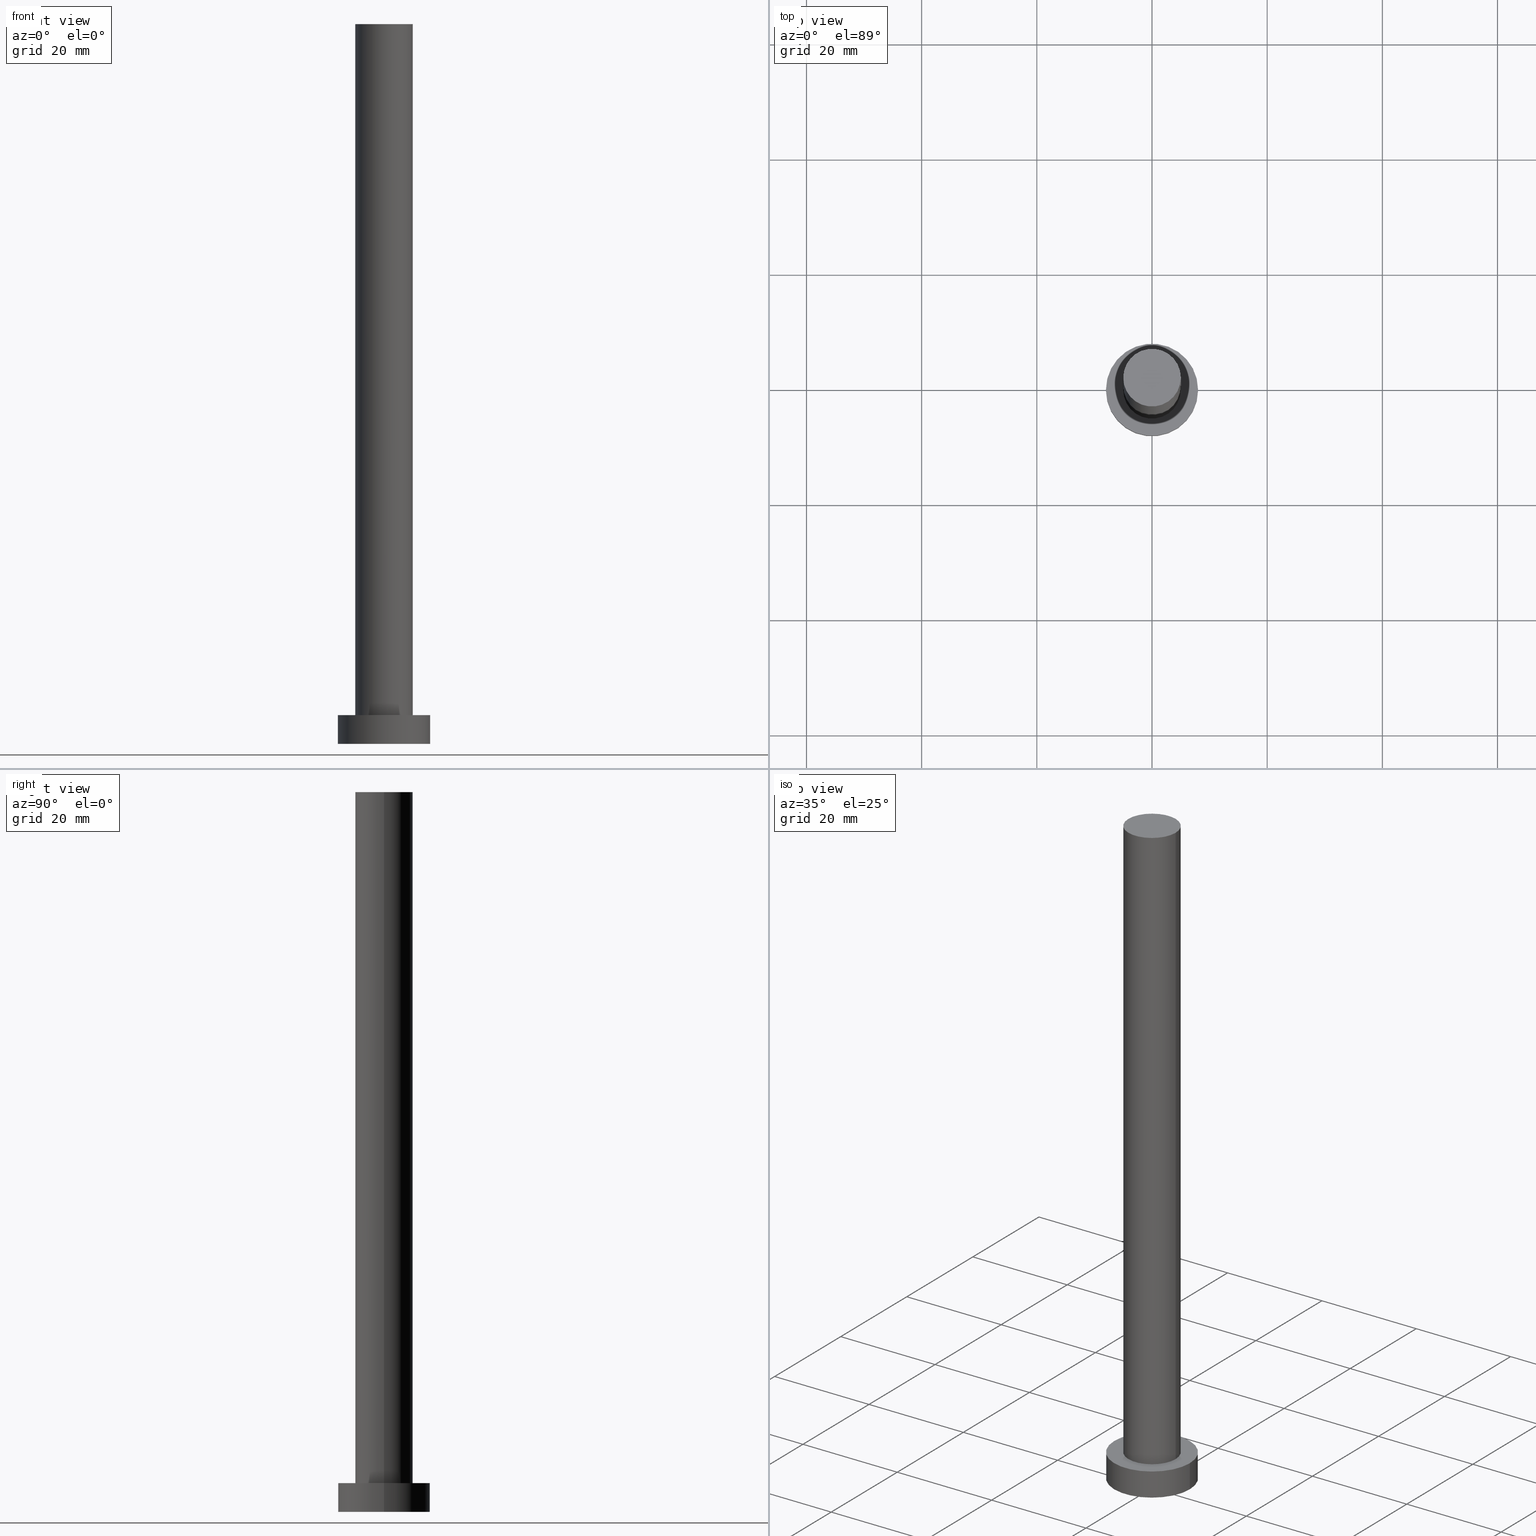
[diagram: canonical four-view strip — front | top / right | iso, engineering-drawing reading convention]
A machine part, canonical four-view strip (front | top / right | iso — engineering-drawing reading convention). The complete STEP part file that produces these views, byte-faithful:
ISO-10303-21;
HEADER;
FILE_DESCRIPTION (( 'STEP AP203' ),
    '1' );
FILE_NAME ('df40.STEP',
    '2023-02-13T10:49:41',
    ( '' ),
    ( '' ),
    'SwSTEP 2.0',
    'SolidWorks 2019',
    '' );
FILE_SCHEMA (( 'CONFIG_CONTROL_DESIGN' ));
ENDSEC;

DATA;
#1 = DIRECTION ( 'NONE',  ( 1.000000000000000000, 0.000000000000000000, 0.000000000000000000 ) ) ;
#2 = FACE_OUTER_BOUND ( 'NONE', #232, .T. ) ;
#3 = CARTESIAN_POINT ( 'NONE',  ( 0.000000000000000000, 0.000000000000000000, 0.000000000000000000 ) ) ;
#4 = PERSON ( 'NEUR�EN�', 'NEUR�EN�', 'NEUR�EN�', ('NEUR�EN�'), ('NEUR�EN�'), ('NEUR�EN�') ) ;
#5 = LOCAL_TIME ( 11, 49, 41.00000000000000000, #244 ) ;
#6 = CIRCLE ( 'NONE', #99, 8.000000000000000000 ) ;
#7 = CALENDAR_DATE ( 2023, 13, 2 ) ;
#8 = ORIENTED_EDGE ( 'NONE', *, *, #211, .T. ) ;
#9 = ORIENTED_EDGE ( 'NONE', *, *, #169, .F. ) ;
#10 = PERSON_AND_ORGANIZATION_ROLE ( 'design_owner' ) ;
#11 = CIRCLE ( 'NONE', #192, 8.000000000000000000 ) ;
#12 = PERSON_AND_ORGANIZATION ( #4, #83 ) ;
#13 = ADVANCED_FACE ( 'NONE', ( #14 ), #231, .T. ) ;
#14 = FACE_OUTER_BOUND ( 'NONE', #239, .T. ) ;
#15 = EDGE_LOOP ( 'NONE', ( #177, #162, #56, #96 ) ) ;
#16 = CARTESIAN_POINT ( 'NONE',  ( -5.000000000000000888, 0.000000000000000000, 125.0000000000000000 ) ) ;
#17 = CARTESIAN_POINT ( 'NONE',  ( 0.000000000000000000, 0.000000000000000000, 125.0000000000000000 ) ) ;
#18 =( LENGTH_UNIT ( ) NAMED_UNIT ( * ) SI_UNIT ( .MILLI., .METRE. ) );
#19 = CYLINDRICAL_SURFACE ( 'NONE', #226, 5.000000000000000888 ) ;
#20 = APPROVAL_ROLE ( '' ) ;
#21 = APPLICATION_CONTEXT ( 'configuration controlled 3d designs of mechanical parts and assemblies' ) ;
#22 = ORIENTED_EDGE ( 'NONE', *, *, #126, .T. ) ;
#23 = APPROVAL_ROLE ( '' ) ;
#24 = DIRECTION ( 'NONE',  ( 0.000000000000000000, 0.000000000000000000, 1.000000000000000000 ) ) ;
#25 = DATE_AND_TIME ( #44, #94 ) ;
#26 = CARTESIAN_POINT ( 'NONE',  ( 0.000000000000000000, 0.000000000000000000, 0.000000000000000000 ) ) ;
#27 = CARTESIAN_POINT ( 'NONE',  ( 0.000000000000000000, 0.000000000000000000, 5.000000000000000000 ) ) ;
#28 = EDGE_LOOP ( 'NONE', ( #141, #120, #102, #151 ) ) ;
#29 = DIRECTION ( 'NONE',  ( 0.000000000000000000, 0.000000000000000000, 1.000000000000000000 ) ) ;
#30 = EDGE_CURVE ( 'NONE', #86, #132, #104, .T. ) ;
#31 = CIRCLE ( 'NONE', #229, 5.000000000000000888 ) ;
#32 = VECTOR ( 'NONE', #101, 1000.000000000000000 ) ;
#33 = CARTESIAN_POINT ( 'NONE',  ( -8.000000000000000000, 0.000000000000000000, 0.000000000000000000 ) ) ;
#34 = CC_DESIGN_DATE_AND_TIME_ASSIGNMENT ( #237, #54, ( #38 ) ) ;
#35 = DIRECTION ( 'NONE',  ( 1.000000000000000000, 0.000000000000000000, -0.000000000000000000 ) ) ;
#36 = CARTESIAN_POINT ( 'NONE',  ( -8.000000000000000000, 0.000000000000000000, 5.000000000000000000 ) ) ;
#37 = APPLICATION_PROTOCOL_DEFINITION ( 'international standard', 'config_control_design', 1994, #118 ) ;
#38 = PRODUCT_DEFINITION ( 'NEZN�M�', '', #197, #190 ) ;
#39 = APPROVAL_PERSON_ORGANIZATION ( #215, #109, #250 ) ;
#40 = MANIFOLD_SOLID_BREP ( 'P�idat vysunut�m3', #75 ) ;
#41 = MECHANICAL_CONTEXT ( 'NONE', #118, 'mechanical' ) ;
#42 = COORDINATED_UNIVERSAL_TIME_OFFSET ( 1, 0, .AHEAD. ) ;
#43 = PERSON_AND_ORGANIZATION_ROLE ( 'design_supplier' ) ;
#44 = CALENDAR_DATE ( 2023, 13, 2 ) ;
#45 = CC_DESIGN_SECURITY_CLASSIFICATION ( #170, ( #197 ) ) ;
#46 = DIRECTION ( 'NONE',  ( -0.000000000000000000, -0.000000000000000000, -1.000000000000000000 ) ) ;
#47 = DIRECTION ( 'NONE',  ( -1.000000000000000000, 0.000000000000000000, 0.000000000000000000 ) ) ;
#48 = FACE_BOUND ( 'NONE', #157, .T. ) ;
#49 = CARTESIAN_POINT ( 'NONE',  ( 0.000000000000000000, 0.000000000000000000, 5.000000000000000000 ) ) ;
#50 = APPROVAL_DATE_TIME ( #148, #242 ) ;
#51 = CARTESIAN_POINT ( 'NONE',  ( 0.000000000000000000, 0.000000000000000000, 0.000000000000000000 ) ) ;
#52 = COORDINATED_UNIVERSAL_TIME_OFFSET ( 1, 0, .AHEAD. ) ;
#53 = DIRECTION ( 'NONE',  ( 0.000000000000000000, 0.000000000000000000, 1.000000000000000000 ) ) ;
#54 = DATE_TIME_ROLE ( 'creation_date' ) ;
#55 = AXIS2_PLACEMENT_3D ( 'NONE', #3, #84, #128 ) ;
#56 = ORIENTED_EDGE ( 'NONE', *, *, #30, .T. ) ;
#57 = CARTESIAN_POINT ( 'NONE',  ( 0.000000000000000000, 0.000000000000000000, 5.000000000000000000 ) ) ;
#58 =( NAMED_UNIT ( * ) SI_UNIT ( $, .STERADIAN. ) SOLID_ANGLE_UNIT ( ) );
#59 = ORIENTED_EDGE ( 'NONE', *, *, #233, .T. ) ;
#60 = CARTESIAN_POINT ( 'NONE',  ( 0.000000000000000000, 0.000000000000000000, 0.000000000000000000 ) ) ;
#61 = SECURITY_CLASSIFICATION_LEVEL ( 'unclassified' ) ;
#62 = VERTEX_POINT ( 'NONE', #125 ) ;
#63 = LOCAL_TIME ( 11, 49, 41.00000000000000000, #42 ) ;
#64 = CC_DESIGN_PERSON_AND_ORGANIZATION_ASSIGNMENT ( #220, #224, ( #170 ) ) ;
#65 = DIRECTION ( 'NONE',  ( 0.000000000000000000, 0.000000000000000000, 1.000000000000000000 ) ) ;
#66 = DIRECTION ( 'NONE',  ( 1.000000000000000000, 0.000000000000000000, 0.000000000000000000 ) ) ;
#67 = DIRECTION ( 'NONE',  ( -0.000000000000000000, -0.000000000000000000, -1.000000000000000000 ) ) ;
#68 = AXIS2_PLACEMENT_3D ( 'NONE', #17, #214, #142 ) ;
#69 = AXIS2_PLACEMENT_3D ( 'NONE', #221, #116, #195 ) ;
#70 = DIRECTION ( 'NONE',  ( -0.000000000000000000, -0.000000000000000000, -1.000000000000000000 ) ) ;
#71 = PLANE ( 'NONE',  #55 ) ;
#72 = CC_DESIGN_PERSON_AND_ORGANIZATION_ASSIGNMENT ( #248, #10, ( #171 ) ) ;
#73 = COORDINATED_UNIVERSAL_TIME_OFFSET ( 1, 0, .AHEAD. ) ;
#74 = EDGE_LOOP ( 'NONE', ( #145, #8 ) ) ;
#75 = CLOSED_SHELL ( 'NONE', ( #121, #13, #230, #182, #251, #82, #154 ) ) ;
#76 = VERTEX_POINT ( 'NONE', #228 ) ;
#77 = APPLICATION_PROTOCOL_DEFINITION ( 'international standard', 'config_control_design', 1994, #21 ) ;
#78 = UNCERTAINTY_MEASURE_WITH_UNIT (LENGTH_MEASURE( 1.000000000000000082E-05 ), #18, 'distance_accuracy_value', 'NONE');
#79 = APPROVAL_STATUS ( 'not_yet_approved' ) ;
#80 = ADVANCED_BREP_SHAPE_REPRESENTATION ( 'df40', ( #40, #127 ), #210 ) ;
#81 = DATE_TIME_ROLE ( 'classification_date' ) ;
#82 = ADVANCED_FACE ( 'NONE', ( #254 ), #144, .T. ) ;
#83 = ORGANIZATION ( 'NEUR�EN�', 'NEUR�EN�', '' ) ;
#84 = DIRECTION ( 'NONE',  ( 0.000000000000000000, 0.000000000000000000, 1.000000000000000000 ) ) ;
#85 = DIRECTION ( 'NONE',  ( -0.000000000000000000, -0.000000000000000000, -1.000000000000000000 ) ) ;
#86 = VERTEX_POINT ( 'NONE', #186 ) ;
#87 = DIRECTION ( 'NONE',  ( 1.000000000000000000, 0.000000000000000000, 0.000000000000000000 ) ) ;
#88 = DIRECTION ( 'NONE',  ( 1.000000000000000000, 0.000000000000000000, 0.000000000000000000 ) ) ;
#89 = EDGE_CURVE ( 'NONE', #160, #150, #31, .T. ) ;
#90 = CARTESIAN_POINT ( 'NONE',  ( 0.000000000000000000, 0.000000000000000000, 125.0000000000000000 ) ) ;
#91 = VECTOR ( 'NONE', #236, 1000.000000000000000 ) ;
#92 = EDGE_CURVE ( 'NONE', #201, #76, #124, .T. ) ;
#93 = LINE ( 'NONE', #36, #91 ) ;
#94 = LOCAL_TIME ( 11, 49, 41.00000000000000000, #225 ) ;
#95 = CALENDAR_DATE ( 2023, 13, 2 ) ;
#96 = ORIENTED_EDGE ( 'NONE', *, *, #233, .F. ) ;
#97 = SHAPE_DEFINITION_REPRESENTATION ( #184, #80 ) ;
#98 = PERSON_AND_ORGANIZATION ( #4, #83 ) ;
#99 = AXIS2_PLACEMENT_3D ( 'NONE', #234, #129, #187 ) ;
#100 = PERSON_AND_ORGANIZATION ( #4, #83 ) ;
#101 = DIRECTION ( 'NONE',  ( -0.000000000000000000, -0.000000000000000000, -1.000000000000000000 ) ) ;
#102 = ORIENTED_EDGE ( 'NONE', *, *, #169, .T. ) ;
#103 = DIRECTION ( 'NONE',  ( 1.000000000000000000, 0.000000000000000000, 0.000000000000000000 ) ) ;
#104 = CIRCLE ( 'NONE', #246, 5.000000000000000888 ) ;
#105 = CARTESIAN_POINT ( 'NONE',  ( 0.000000000000000000, 0.000000000000000000, 125.0000000000000000 ) ) ;
#106 = PLANE ( 'NONE',  #68 ) ;
#107 = CC_DESIGN_APPROVAL ( #242, ( #38 ) ) ;
#108 = CARTESIAN_POINT ( 'NONE',  ( 0.000000000000000000, 0.000000000000000000, 5.000000000000000000 ) ) ;
#109 = APPROVAL ( #131, 'NEUR�EN�' ) ;
#110 = CARTESIAN_POINT ( 'NONE',  ( -5.000000000000000888, 0.000000000000000000, 125.0000000000000000 ) ) ;
#111 = DIRECTION ( 'NONE',  ( 1.000000000000000000, 0.000000000000000000, 0.000000000000000000 ) ) ;
#112 = VECTOR ( 'NONE', #122, 1000.000000000000000 ) ;
#113 = CC_DESIGN_DATE_AND_TIME_ASSIGNMENT ( #115, #81, ( #170 ) ) ;
#114 = VERTEX_POINT ( 'NONE', #33 ) ;
#115 = DATE_AND_TIME ( #117, #63 ) ;
#116 = DIRECTION ( 'NONE',  ( -0.000000000000000000, -0.000000000000000000, -1.000000000000000000 ) ) ;
#117 = CALENDAR_DATE ( 2023, 13, 2 ) ;
#118 = APPLICATION_CONTEXT ( 'configuration controlled 3d designs of mechanical parts and assemblies' ) ;
#119 = CIRCLE ( 'NONE', #152, 5.000000000000000888 ) ;
#120 = ORIENTED_EDGE ( 'NONE', *, *, #161, .F. ) ;
#121 = ADVANCED_FACE ( 'NONE', ( #208 ), #19, .T. ) ;
#122 = DIRECTION ( 'NONE',  ( -0.000000000000000000, -0.000000000000000000, -1.000000000000000000 ) ) ;
#123 = DIRECTION ( 'NONE',  ( 0.000000000000000000, 0.000000000000000000, 1.000000000000000000 ) ) ;
#124 = LINE ( 'NONE', #206, #112 ) ;
#125 = CARTESIAN_POINT ( 'NONE',  ( -8.000000000000000000, 0.000000000000000000, 5.000000000000000000 ) ) ;
#126 = EDGE_CURVE ( 'NONE', #132, #86, #175, .T. ) ;
#127 = AXIS2_PLACEMENT_3D ( 'NONE', #26, #24, #243 ) ;
#128 = DIRECTION ( 'NONE',  ( 1.000000000000000000, 0.000000000000000000, -0.000000000000000000 ) ) ;
#129 = DIRECTION ( 'NONE',  ( 0.000000000000000000, 0.000000000000000000, 1.000000000000000000 ) ) ;
#130 = PERSON_AND_ORGANIZATION ( #4, #83 ) ;
#131 = APPROVAL_STATUS ( 'not_yet_approved' ) ;
#132 = VERTEX_POINT ( 'NONE', #223 ) ;
#133 = PERSON_AND_ORGANIZATION_ROLE ( 'creator' ) ;
#134 = AXIS2_PLACEMENT_3D ( 'NONE', #49, #67, #252 ) ;
#135 = CYLINDRICAL_SURFACE ( 'NONE', #69, 8.000000000000000000 ) ;
#136 = APPROVAL_DATE_TIME ( #249, #109 ) ;
#137 = ORIENTED_EDGE ( 'NONE', *, *, #92, .T. ) ;
#138 = PRODUCT_RELATED_PRODUCT_CATEGORY ( 'detail', '', ( #171 ) ) ;
#139 = LINE ( 'NONE', #227, #32 ) ;
#140 = CARTESIAN_POINT ( 'NONE',  ( 0.000000000000000000, 0.000000000000000000, 125.0000000000000000 ) ) ;
#141 = ORIENTED_EDGE ( 'NONE', *, *, #92, .F. ) ;
#142 = DIRECTION ( 'NONE',  ( 1.000000000000000000, 0.000000000000000000, -0.000000000000000000 ) ) ;
#143 = CIRCLE ( 'NONE', #247, 8.000000000000000000 ) ;
#144 = CYLINDRICAL_SURFACE ( 'NONE', #168, 5.000000000000000888 ) ;
#145 = ORIENTED_EDGE ( 'NONE', *, *, #161, .T. ) ;
#146 = DIRECTION ( 'NONE',  ( 0.000000000000000000, 0.000000000000000000, 1.000000000000000000 ) ) ;
#147 = LOCAL_TIME ( 11, 49, 41.00000000000000000, #52 ) ;
#148 = DATE_AND_TIME ( #95, #147 ) ;
#149 = CALENDAR_DATE ( 2023, 13, 2 ) ;
#150 = VERTEX_POINT ( 'NONE', #179 ) ;
#151 = ORIENTED_EDGE ( 'NONE', *, *, #218, .T. ) ;
#152 = AXIS2_PLACEMENT_3D ( 'NONE', #167, #53, #66 ) ;
#153 = ORIENTED_EDGE ( 'NONE', *, *, #126, .F. ) ;
#154 = ADVANCED_FACE ( 'NONE', ( #207 ), #106, .T. ) ;
#155 = ORIENTED_EDGE ( 'NONE', *, *, #165, .F. ) ;
#156 = FACE_OUTER_BOUND ( 'NONE', #28, .T. ) ;
#157 = EDGE_LOOP ( 'NONE', ( #153, #183 ) ) ;
#158 = ORIENTED_EDGE ( 'NONE', *, *, #173, .T. ) ;
#159 = CARTESIAN_POINT ( 'NONE',  ( 0.000000000000000000, 0.000000000000000000, 5.000000000000000000 ) ) ;
#160 = VERTEX_POINT ( 'NONE', #110 ) ;
#161 = EDGE_CURVE ( 'NONE', #62, #201, #6, .T. ) ;
#162 = ORIENTED_EDGE ( 'NONE', *, *, #199, .T. ) ;
#163 = CIRCLE ( 'NONE', #209, 8.000000000000000000 ) ;
#164 = AXIS2_PLACEMENT_3D ( 'NONE', #159, #204, #35 ) ;
#165 = EDGE_CURVE ( 'NONE', #76, #114, #163, .T. ) ;
#166 = LOCAL_TIME ( 11, 49, 41.00000000000000000, #73 ) ;
#167 = CARTESIAN_POINT ( 'NONE',  ( 0.000000000000000000, 0.000000000000000000, 125.0000000000000000 ) ) ;
#168 = AXIS2_PLACEMENT_3D ( 'NONE', #105, #46, #253 ) ;
#169 = EDGE_CURVE ( 'NONE', #62, #114, #93, .T. ) ;
#170 = SECURITY_CLASSIFICATION ( '', '', #61 ) ;
#171 = PRODUCT ( 'df40', 'df40', '', ( #41 ) ) ;
#172 = ORIENTED_EDGE ( 'NONE', *, *, #89, .F. ) ;
#173 = EDGE_CURVE ( 'NONE', #150, #160, #119, .T. ) ;
#174 =( NAMED_UNIT ( * ) PLANE_ANGLE_UNIT ( ) SI_UNIT ( $, .RADIAN. ) );
#175 = CIRCLE ( 'NONE', #216, 5.000000000000000888 ) ;
#176 = APPROVAL_DATE_TIME ( #25, #188 ) ;
#177 = ORIENTED_EDGE ( 'NONE', *, *, #173, .F. ) ;
#178 = FACE_OUTER_BOUND ( 'NONE', #74, .T. ) ;
#179 = CARTESIAN_POINT ( 'NONE',  ( 5.000000000000000888, 6.123233995736767268E-16, 125.0000000000000000 ) ) ;
#180 = CC_DESIGN_PERSON_AND_ORGANIZATION_ASSIGNMENT ( #130, #213, ( #38 ) ) ;
#181 = DIRECTION ( 'NONE',  ( 0.000000000000000000, 0.000000000000000000, 1.000000000000000000 ) ) ;
#182 = ADVANCED_FACE ( 'NONE', ( #48, #178 ), #240, .T. ) ;
#183 = ORIENTED_EDGE ( 'NONE', *, *, #30, .F. ) ;
#184 = PRODUCT_DEFINITION_SHAPE ( 'NONE', 'NONE',  #38 ) ;
#185 = ORIENTED_EDGE ( 'NONE', *, *, #89, .T. ) ;
#186 = CARTESIAN_POINT ( 'NONE',  ( 5.000000000000000888, 6.123233995736767268E-16, 5.000000000000000000 ) ) ;
#187 = DIRECTION ( 'NONE',  ( 1.000000000000000000, 0.000000000000000000, 0.000000000000000000 ) ) ;
#188 = APPROVAL ( #194, 'NEUR�EN�' ) ;
#189 = EDGE_LOOP ( 'NONE', ( #185, #158 ) ) ;
#190 = DESIGN_CONTEXT ( 'detailed design', #21, 'design' ) ;
#191 = ORIENTED_EDGE ( 'NONE', *, *, #211, .F. ) ;
#192 = AXIS2_PLACEMENT_3D ( 'NONE', #60, #29, #103 ) ;
#193 = EDGE_LOOP ( 'NONE', ( #245, #172, #59, #22 ) ) ;
#194 = APPROVAL_STATUS ( 'not_yet_approved' ) ;
#195 = DIRECTION ( 'NONE',  ( -1.000000000000000000, 0.000000000000000000, 0.000000000000000000 ) ) ;
#196 = ORIENTED_EDGE ( 'NONE', *, *, #165, .T. ) ;
#197 = PRODUCT_DEFINITION_FORMATION_WITH_SPECIFIED_SOURCE ( 'LIBOVOLN�', '', #171, .NOT_KNOWN. ) ;
#198 = PERSON_AND_ORGANIZATION ( #4, #83 ) ;
#199 = EDGE_CURVE ( 'NONE', #150, #86, #139, .T. ) ;
#200 = CARTESIAN_POINT ( 'NONE',  ( 8.000000000000000000, 9.797174393178825657E-16, 5.000000000000000000 ) ) ;
#201 = VERTEX_POINT ( 'NONE', #200 ) ;
#202 = CC_DESIGN_APPROVAL ( #109, ( #197 ) ) ;
#203 = DIRECTION ( 'NONE',  ( 1.000000000000000000, 0.000000000000000000, 0.000000000000000000 ) ) ;
#204 = DIRECTION ( 'NONE',  ( 0.000000000000000000, 0.000000000000000000, 1.000000000000000000 ) ) ;
#205 = ORIENTED_EDGE ( 'NONE', *, *, #218, .F. ) ;
#206 = CARTESIAN_POINT ( 'NONE',  ( 8.000000000000000000, 9.797174393178825657E-16, 5.000000000000000000 ) ) ;
#207 = FACE_OUTER_BOUND ( 'NONE', #189, .T. ) ;
#208 = FACE_OUTER_BOUND ( 'NONE', #15, .T. ) ;
#209 = AXIS2_PLACEMENT_3D ( 'NONE', #51, #212, #111 ) ;
#210 =( GEOMETRIC_REPRESENTATION_CONTEXT ( 3 ) GLOBAL_UNCERTAINTY_ASSIGNED_CONTEXT ( ( #78 ) ) GLOBAL_UNIT_ASSIGNED_CONTEXT ( ( #18, #174, #58 ) ) REPRESENTATION_CONTEXT ( 'NONE', 'WORKASPACE' ) );
#211 = EDGE_CURVE ( 'NONE', #201, #62, #143, .T. ) ;
#212 = DIRECTION ( 'NONE',  ( 0.000000000000000000, 0.000000000000000000, 1.000000000000000000 ) ) ;
#213 = PERSON_AND_ORGANIZATION_ROLE ( 'creator' ) ;
#214 = DIRECTION ( 'NONE',  ( 0.000000000000000000, 0.000000000000000000, 1.000000000000000000 ) ) ;
#215 = PERSON_AND_ORGANIZATION ( #4, #83 ) ;
#216 = AXIS2_PLACEMENT_3D ( 'NONE', #57, #123, #87 ) ;
#217 = VECTOR ( 'NONE', #70, 1000.000000000000000 ) ;
#218 = EDGE_CURVE ( 'NONE', #114, #76, #11, .T. ) ;
#219 = APPROVAL_PERSON_ORGANIZATION ( #198, #188, #23 ) ;
#220 = PERSON_AND_ORGANIZATION ( #4, #83 ) ;
#221 = CARTESIAN_POINT ( 'NONE',  ( 0.000000000000000000, 0.000000000000000000, 5.000000000000000000 ) ) ;
#222 = CC_DESIGN_PERSON_AND_ORGANIZATION_ASSIGNMENT ( #100, #43, ( #197 ) ) ;
#223 = CARTESIAN_POINT ( 'NONE',  ( -5.000000000000000888, 0.000000000000000000, 5.000000000000000000 ) ) ;
#224 = PERSON_AND_ORGANIZATION_ROLE ( 'classification_officer' ) ;
#225 = COORDINATED_UNIVERSAL_TIME_OFFSET ( 1, 0, .AHEAD. ) ;
#226 = AXIS2_PLACEMENT_3D ( 'NONE', #140, #85, #47 ) ;
#227 = CARTESIAN_POINT ( 'NONE',  ( 5.000000000000000888, 6.123233995736767268E-16, 125.0000000000000000 ) ) ;
#228 = CARTESIAN_POINT ( 'NONE',  ( 8.000000000000000000, 9.797174393178825657E-16, 0.000000000000000000 ) ) ;
#229 = AXIS2_PLACEMENT_3D ( 'NONE', #90, #65, #1 ) ;
#230 = ADVANCED_FACE ( 'NONE', ( #156 ), #135, .T. ) ;
#231 = CYLINDRICAL_SURFACE ( 'NONE', #134, 8.000000000000000000 ) ;
#232 = EDGE_LOOP ( 'NONE', ( #205, #155 ) ) ;
#233 = EDGE_CURVE ( 'NONE', #160, #132, #255, .T. ) ;
#234 = CARTESIAN_POINT ( 'NONE',  ( 0.000000000000000000, 0.000000000000000000, 5.000000000000000000 ) ) ;
#235 = APPROVAL_PERSON_ORGANIZATION ( #98, #242, #20 ) ;
#236 = DIRECTION ( 'NONE',  ( -0.000000000000000000, -0.000000000000000000, -1.000000000000000000 ) ) ;
#237 = DATE_AND_TIME ( #149, #166 ) ;
#238 = CC_DESIGN_PERSON_AND_ORGANIZATION_ASSIGNMENT ( #12, #133, ( #197 ) ) ;
#239 = EDGE_LOOP ( 'NONE', ( #191, #137, #196, #9 ) ) ;
#240 = PLANE ( 'NONE',  #164 ) ;
#241 = CC_DESIGN_APPROVAL ( #188, ( #170 ) ) ;
#242 = APPROVAL ( #79, 'NEUR�EN�' ) ;
#243 = DIRECTION ( 'NONE',  ( 1.000000000000000000, 0.000000000000000000, 0.000000000000000000 ) ) ;
#244 = COORDINATED_UNIVERSAL_TIME_OFFSET ( 1, 0, .AHEAD. ) ;
#245 = ORIENTED_EDGE ( 'NONE', *, *, #199, .F. ) ;
#246 = AXIS2_PLACEMENT_3D ( 'NONE', #108, #146, #88 ) ;
#247 = AXIS2_PLACEMENT_3D ( 'NONE', #27, #181, #203 ) ;
#248 = PERSON_AND_ORGANIZATION ( #4, #83 ) ;
#249 = DATE_AND_TIME ( #7, #5 ) ;
#250 = APPROVAL_ROLE ( '' ) ;
#251 = ADVANCED_FACE ( 'NONE', ( #2 ), #71, .F. ) ;
#252 = DIRECTION ( 'NONE',  ( -1.000000000000000000, 0.000000000000000000, 0.000000000000000000 ) ) ;
#253 = DIRECTION ( 'NONE',  ( -1.000000000000000000, 0.000000000000000000, 0.000000000000000000 ) ) ;
#254 = FACE_OUTER_BOUND ( 'NONE', #193, .T. ) ;
#255 = LINE ( 'NONE', #16, #217 ) ;
ENDSEC;
END-ISO-10303-21;
